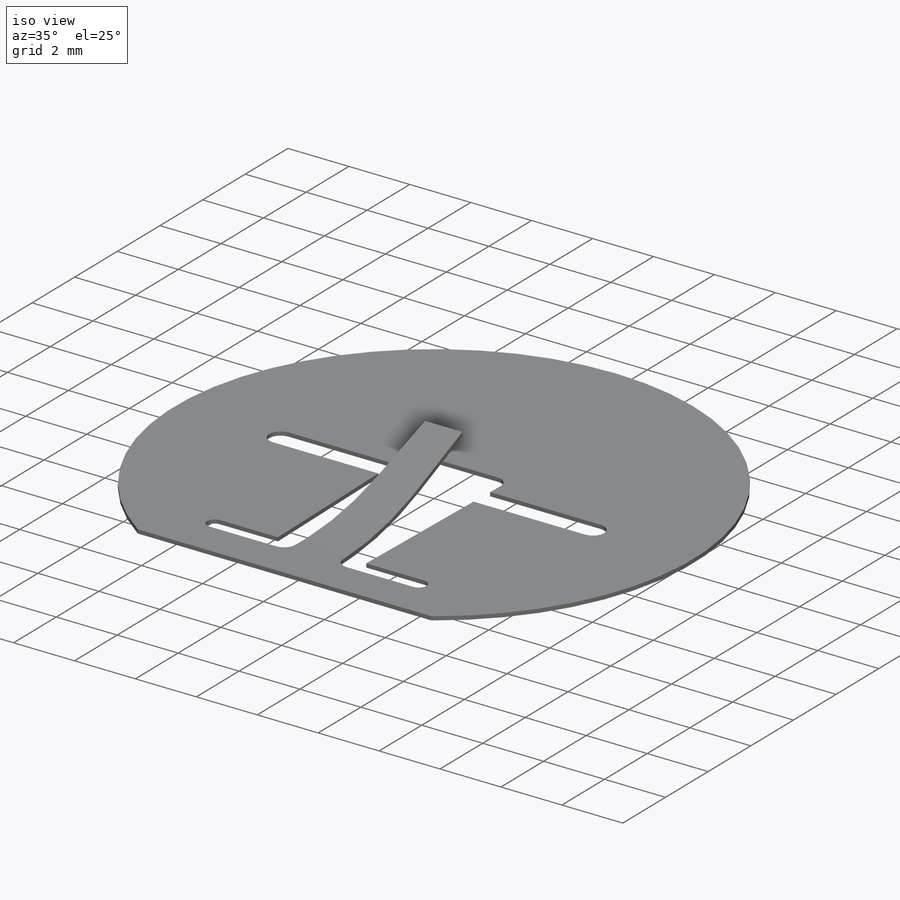
[diagram: iso view]
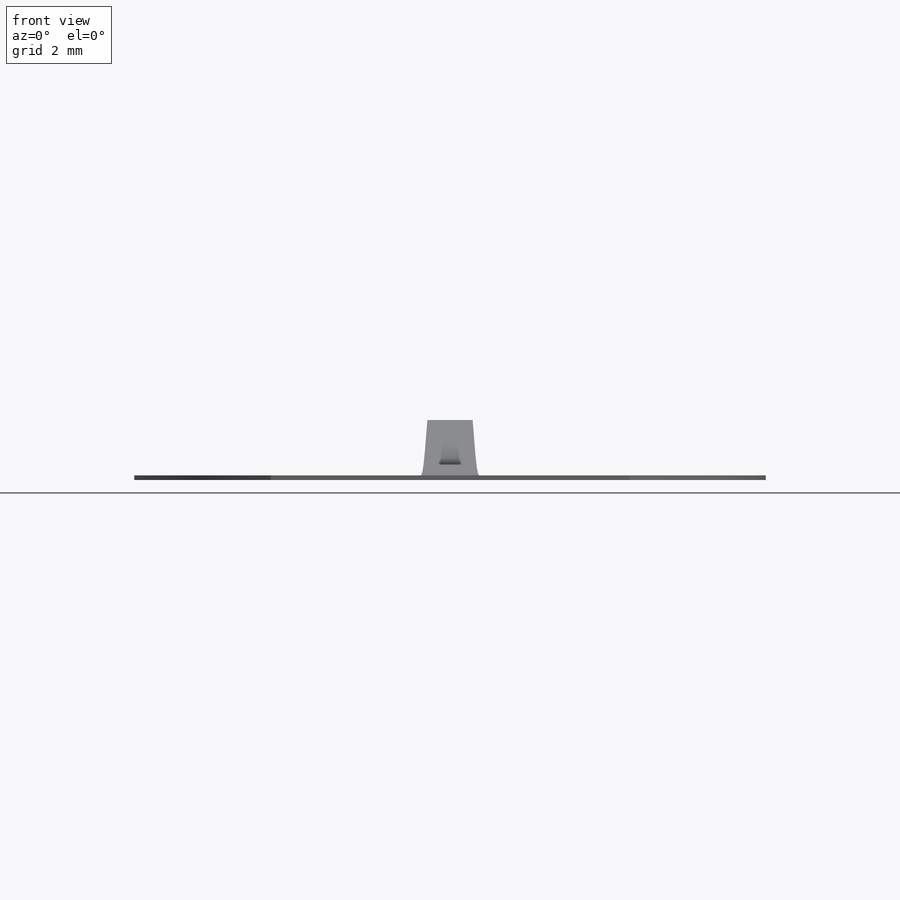
[diagram: front view]
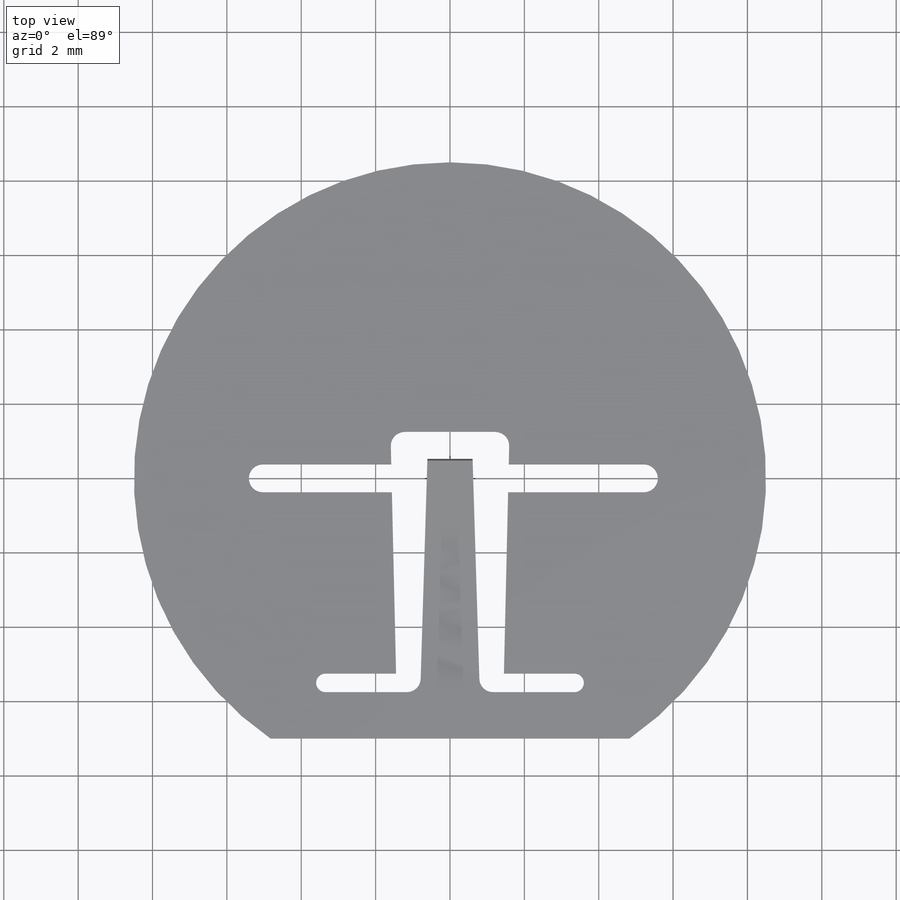
[diagram: top view]
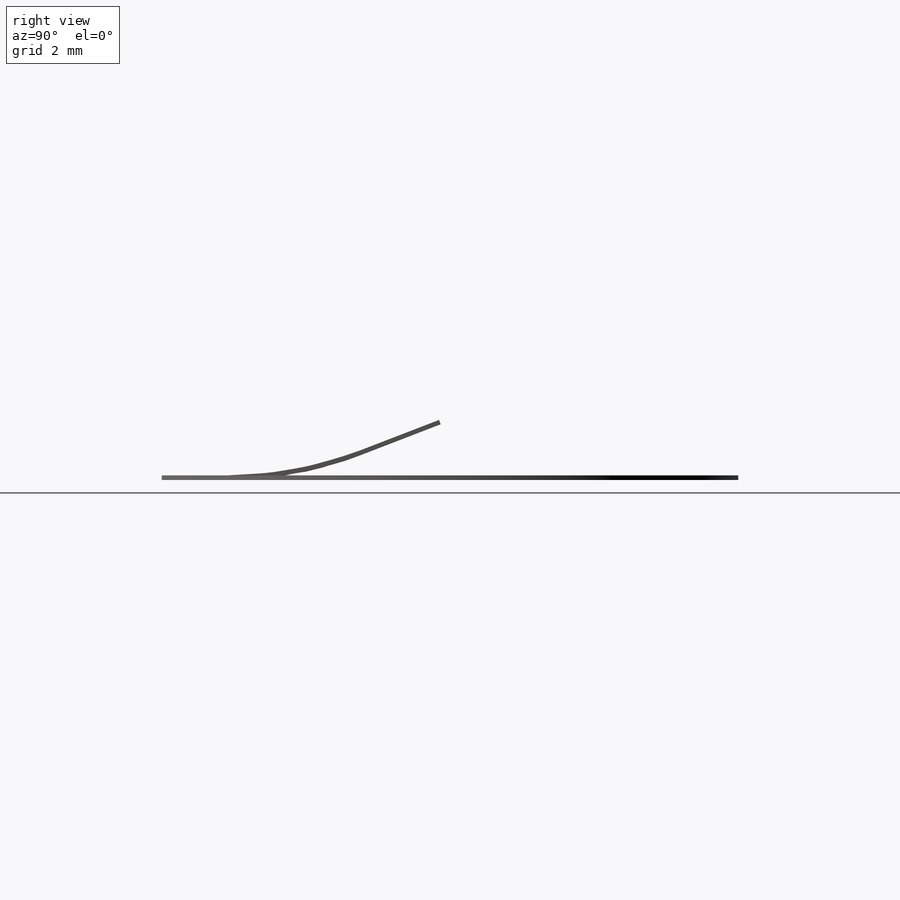
[diagram: right view]
SOLIDWORKS PART (.sldprt)
format: sldprt  version: not decoded by parser v0  size: 241,152 bytes
history: native  units: mm
features: sketch x4, material x1, extrude x1, plane x1, sweep x1, cut_extrude x1, fillet x1 (+12 scaffold rows collapsed)
feature tree (22):
  scaffold x12  (default folders/planes/origin — collapsed)
  material  "ABS PC"
  sketch  "Sketch1"  dims[c1.D1=8.5mm c1.D7=0.375mm c1.D10=0.375mm c1.D9=0.375mm c2.D10=0.375mm c2.D2=7.0mm c2.D3=0.75mm c2.D4=10.25mm c2.D5=5.215mm c2.D6=1.25mm c2.D8=3.2mm c2.D9=1.6mm c2.D7=1.6mm c3.D9=2.9mm c3.D10=1.45mm c3.D11=0.875mm c3.D8=0.875mm c3.D7=1.6mm c4.D8=1.6mm c4.D11=6.7mm c4.D12=0.5mm c4.D13=1.25mm c4.D14=5.75mm c5.D13=3.35mm c5.D15=1.45mm]
  extrude  "Extrude1"  Depth=0.125mm
  sketch  "Sketch2"  dims[c1.D4=10.0mm c1.D1=5.75mm c1.D2=~0.76253mm c1.D3=~1.140967mm c2.D2=0.5mm c2.D3=1.5mm c2.D1=5.75mm c2.D4=0.5mm c2.D5=5.75mm]
  plane  "Plane1"
  sketch  "Sketch3"  dims[D1=0.125mm D2=1.6mm D3=0.8mm]
  sweep  "Sweep2"
  sketch  "Sketch5"  dims[D1=0.75mm D2=0.6mm D3=1.2mm D4=5.75mm D5=1.6mm D6=0.8mm D7=2.4mm D8=1.2mm D9=1.0mm]
  cut_extrude  "Extrude2"  [1 undecoded]
  fillet  "Fillet3"  Radius=0.365mm
decode coverage: 6 of 8 modeling features carry decoded parameters
note: ~ marks probable driven/reference dimensions
note: 1 parameter value undecoded
note: suppression state not decoded; provenance and decode notes live in map.json
